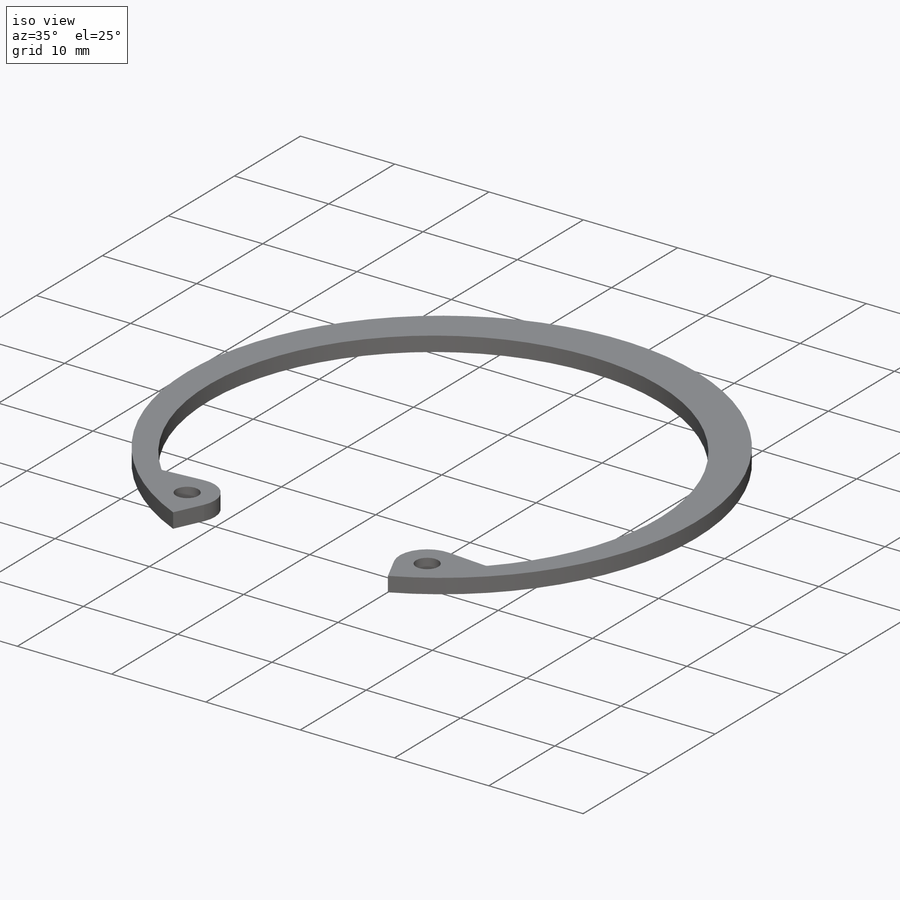
[diagram: iso view]
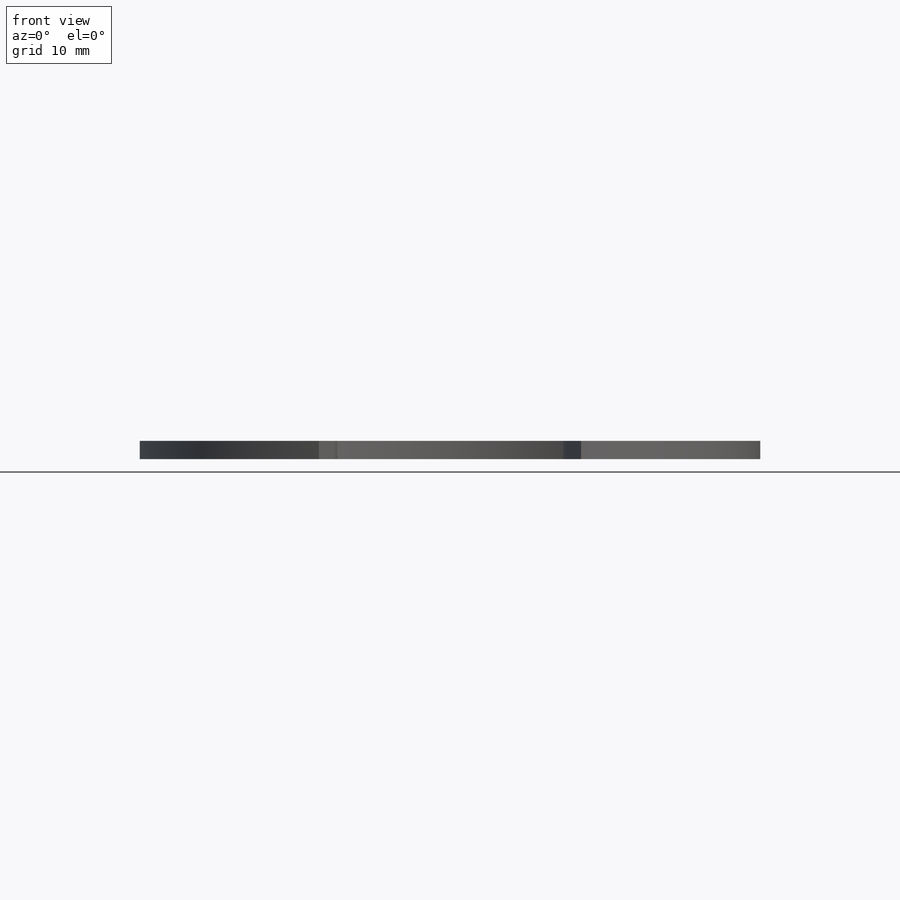
[diagram: front view]
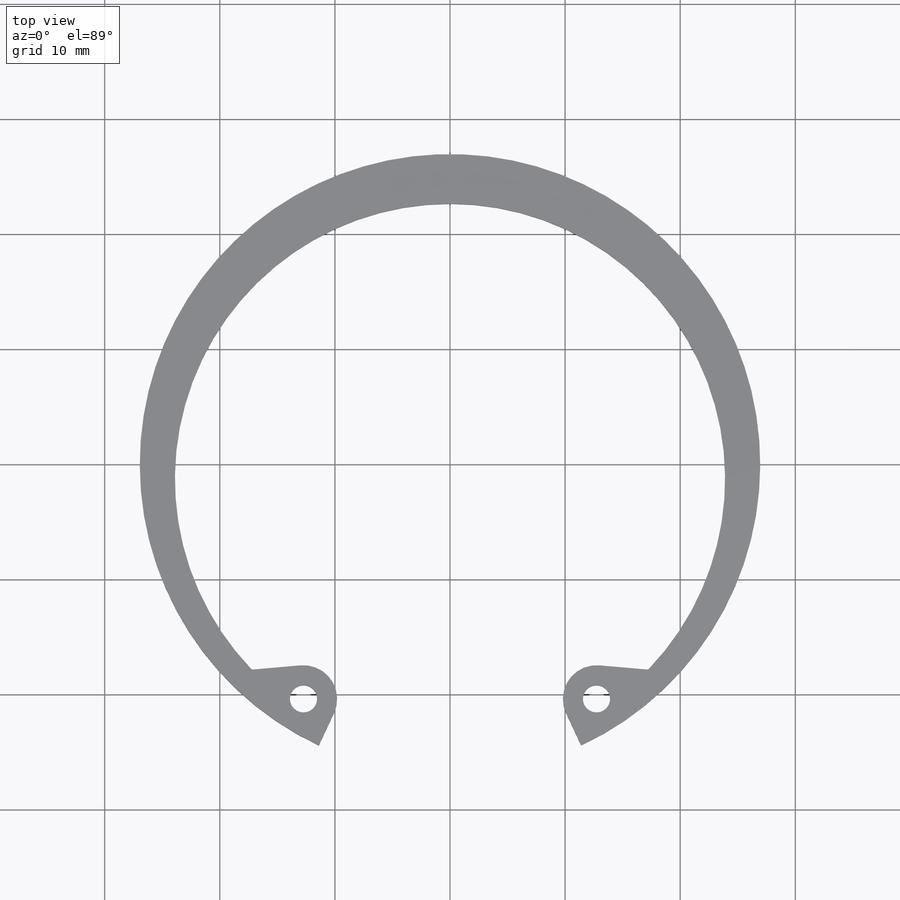
[diagram: top view]
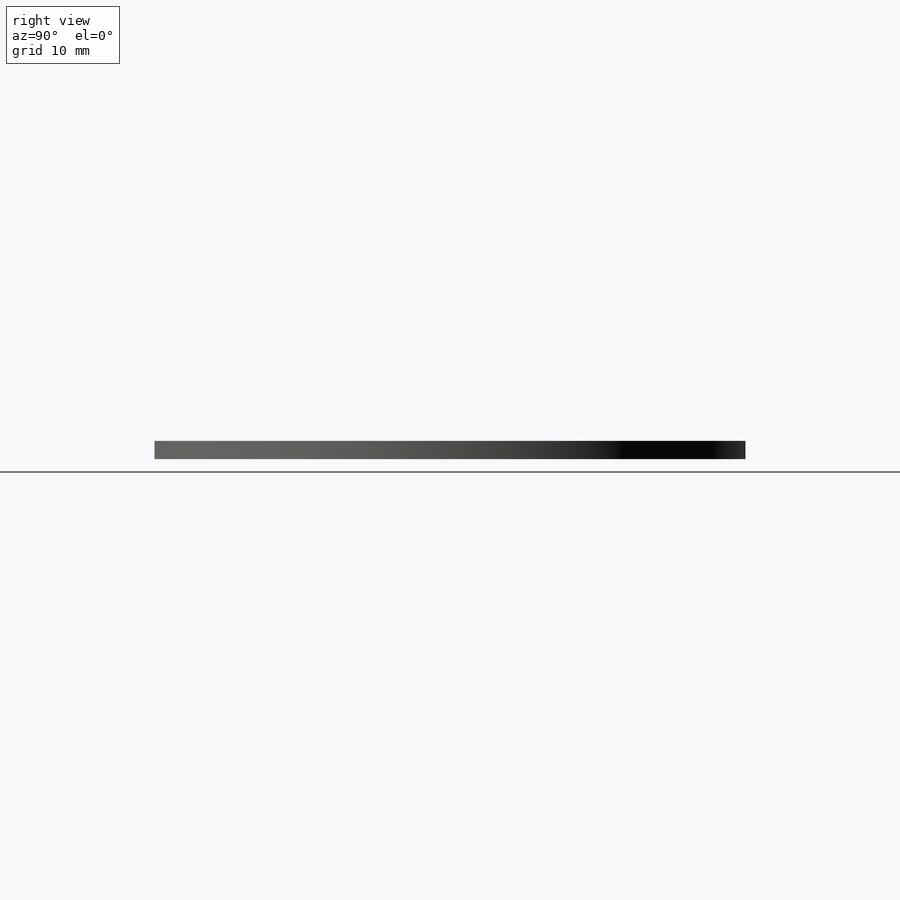
[diagram: right view]
SOLIDWORKS PART (.sldprt)
format: sldprt  version: not decoded by parser v0  size: 362,496 bytes
history: native  units: mm
features: sketch x2, material x1, extrude x1, fillet x1, revolve x1, delete_body x1 (+11 scaffold rows collapsed)
feature tree (18):
  scaffold x11  (default folders/planes/origin — collapsed)
  material  "Cast Carbon Steel"
  sketch  "Sketch2"  dims[c1.A=277.368mm c1.D2=237.617mm c1.Hole Dia=4.7498mm c1.L=276.86mm c1.D=~303.791084mm c2.L=221.107mm c2.R=1.5748mm c2.A=277.368mm c3.L=221.107mm c3.Df=53.8988mm c3.R=2.3622mm c4.L=40.132mm c4.H=18.669mm c4.D1=~59.40425mm c4.D2=~59.40425mm c5.D2=130.0deg c5.Section Max=17.145mm c5.Section Min=9.3218mm c6.D2=~59.40425mm c7.D2=130.0deg c7.D3=2.54mm c7.D4=1.27mm c7.D1=140.2715mm c8.D2=140.2715mm c8.D1=140.2715mm c9.D2=140.2715mm c9.D1=140.2715mm c10.D2=140.2715mm c10.D1=140.2715mm c11.D2=140.2715mm c11.D1=140.2715mm c12.D2=140.2715mm c12.D1=140.2715mm c13.D2=140.2715mm c13.H=18.669mm c13.Section Min=9.3218mm c14.D2=~9.278553mm c15.D2=60.0deg c15.D1=~9.278553mm c16.D1=120.0deg c17.D1=~18.690071mm c18.D1=~133.040841deg c19.D1=~10.212226mm c20.D1=45.0deg c20.D3=~18.368312mm c20.Angle=1.0deg c21.D3=~18.653439mm c21.Angle=3.5deg c22.D3=18.669mm c22.D4=18.669mm c22.H=~18.738693mm c23.D3=~137.490465mm c23.D4=~137.490465mm c24.D3=~137.490465mm c24.D4=~137.490465mm c25.D3=~137.490465mm c25.H=18.669mm c25.Sec. Max=4.318mm c25.Sec. Min=2.159mm c25.D1=~16.284459mm c26.D1=60.0deg c26.D2=~16.332232mm c27.D2=~42.521419deg c28.D2=~18.661304mm c29.D2=60.0deg c29.H=18.669mm c29.D3=138.684mm c30.D3=10.0deg c31.D3=138.684mm c31.Angle=5.0deg c32.D3=138.684mm c32.Angle=10.0deg c33.D3=138.684mm c33.Angle=10.0deg c33.H=18.669mm c34.H=5.842mm c34.D3=3.3528mm c35.D3=50.0deg c36.D3=~3.376577mm c37.D3=45.0deg c38.D3=~1.106678mm c39.D3=45.0deg c40.D3=~1.322617mm c40.Angle=10.0deg c41.D3=~0.939085mm c41.Angle=25.0deg]
  extrude  "Extrude1"  Depth=1.5748mm
  fillet  "Fillet1"  Radius=0.254mm
  sketch  "Sketch3"  dims[c1.Shaft Dia=254.0mm c1.Groove Dia=243.205mm c1.Groove Wd=5.3086mm c1.Shaft Lg=18.8976mm c1.Dg=53.8988mm c1.Db=50.8mm c1.W=1.7272mm c1.D1=0.2286mm c1.D2=0.6858mm c1.D3=11.8745mm c1.D4=0.508mm c2.D1=0.7874mm c2.D2=1.5494mm c2.D4=1.5494mm c2.D3=2.3622mm]
  revolve  "Revolve1"  Angle=360deg
  delete_body  "Body-Delete1"
decode coverage: 5 of 6 modeling features carry decoded parameters
note: ~ marks probable driven/reference dimensions
note: suppression state not decoded; provenance and decode notes live in map.json
